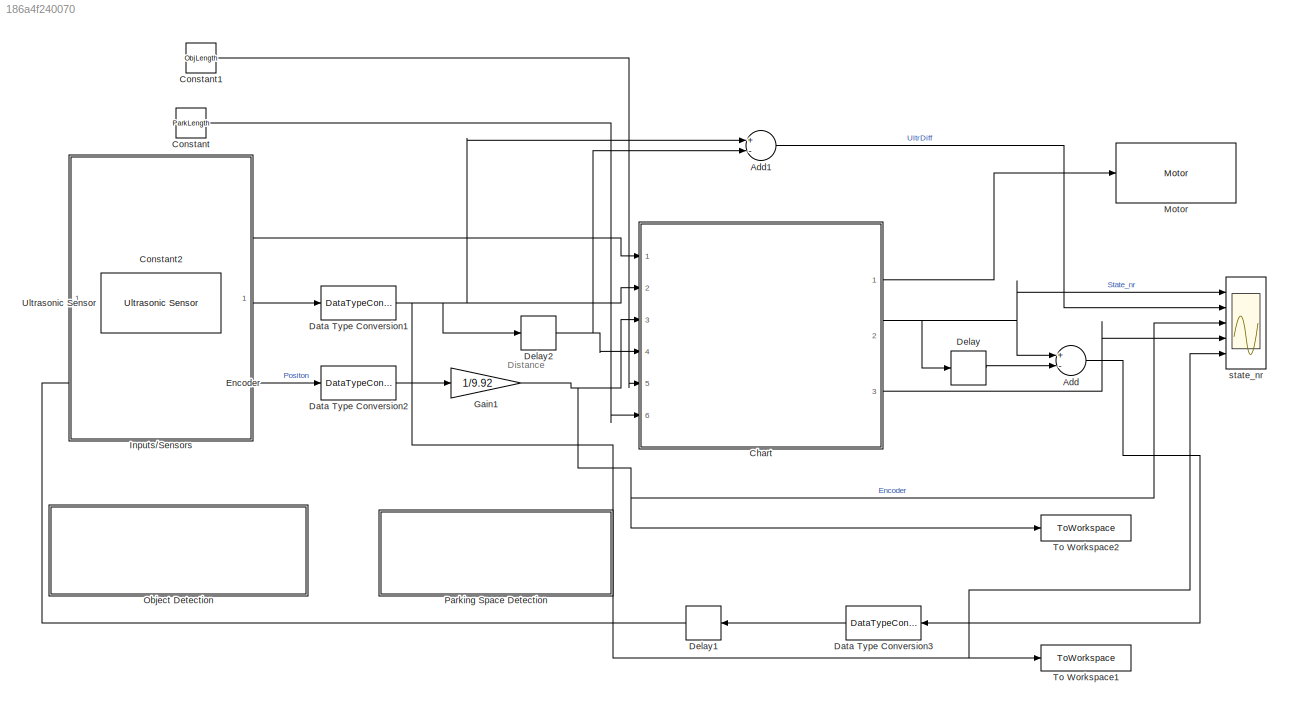
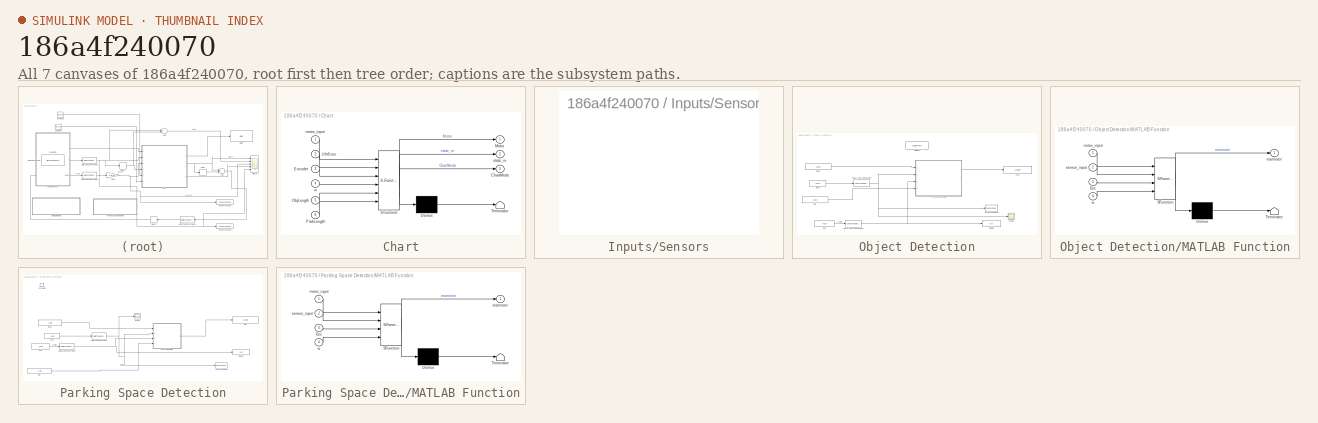
[diagram: thumbnail index - all 7 canvases of the model, root first then tree order]
MODEL slx_186a4f240070
KIND model
CONFIG AbsTol = auto
CONFIG FixedStep = auto
CONFIG MaxStep = auto
CONFIG MinStep = auto
CONFIG RelTol = 1e-3
CONFIG SampleTimeConstraint = Unconstrained
CONFIG Solver = ode45
CONFIG SolverMode = Auto
CONFIG SolverName = ode45
CONFIG StartTime = 0.0
CONFIG StopTime = 10.0
BLOCK [Sum] Add
  InputSameDT = off
  Inputs = +-
  OutDataTypeStr = Inherit: Inherit via internal rule
  Ports = [2, 1]
  SaturateOnIntegerOverflow = off
BLOCK [Sum] Add1
  InputSameDT = off
  Inputs = +-
  OutDataTypeStr = Inherit: Inherit via internal rule
  Ports = [2, 1]
  SaturateOnIntegerOverflow = off
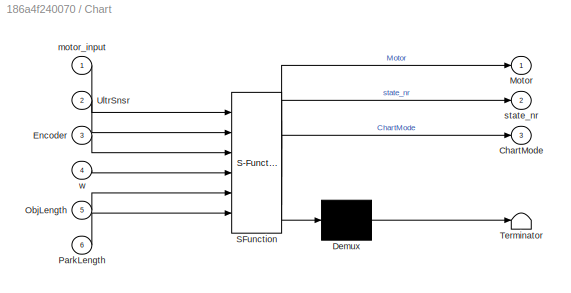
BLOCK [SubSystem] Chart
  ErrorFcn = Stateflow.Translate.translate
  PermitHierarchicalResolution = ExplicitOnly
  Ports = [6, 3]
  RequestExecContextInheritance = off
  SFBlockType = Chart
  TreatAsAtomicUnit = on
BLOCK [Demux] Chart/ Demux 
  Outputs = 1
  Ports = [1, 1]
BLOCK [S-Function] Chart/ SFunction 
  EnableBusSupport = on
  FunctionName = sf_sfun
  PortCounts = [6 4]
  Ports = [6, 4]
  Tag = Stateflow S-Function stateflow6 3
BLOCK [Terminator] Chart/ Terminator 
BLOCK [Outport] Chart/ChartMode
  IconDisplay = Port number
  Port = 3
BLOCK [Inport] Chart/Encoder
  IconDisplay = Port number
  Port = 3
BLOCK [Outport] Chart/Motor
  IconDisplay = Port number
BLOCK [Inport] Chart/ObjLength
  IconDisplay = Port number
  Port = 5
BLOCK [Inport] Chart/ParkLength
  IconDisplay = Port number
  Port = 6
BLOCK [Inport] Chart/UltrSnsr
  IconDisplay = Port number
  Port = 2
BLOCK [Inport] Chart/motor_input
  IconDisplay = Port number
BLOCK [Outport] Chart/state_nr
  IconDisplay = Port number
  Port = 2
BLOCK [Inport] Chart/w
  IconDisplay = Port number
  Port = 4
BLOCK [Constant] Constant
  Value = ParkLength
BLOCK [Constant] Constant1
  Value = ObjLength
BLOCK [Constant] Constant2
  Value = 30
BLOCK [DataTypeConversion] Data Type Conversion1
  RndMeth = Floor
  SaturateOnIntegerOverflow = off
BLOCK [DataTypeConversion] Data Type Conversion2
  RndMeth = Floor
  SaturateOnIntegerOverflow = off
BLOCK [DataTypeConversion] Data Type Conversion3
  OutDataTypeStr = int8
  RndMeth = Floor
  SaturateOnIntegerOverflow = off
BLOCK [Delay] Delay
  DelayLength = 1
  InitialCondition = 0
  InputPortMap = u0
  Ports = [1, 1]
BLOCK [Delay] Delay1
  DelayLength = 1
  InitialCondition = 0
  InputPortMap = u0
  Ports = [1, 1]
BLOCK [Delay] Delay2
  DelayLength = 1
  InitialCondition = 0
  InputPortMap = u0
  Ports = [1, 1]
BLOCK [Reference] Encoder  REF=legoev3lib/Encoder
  Ports = [1, 1]
  SourceBlock = legoev3lib/Encoder
  SourceType = LEGO MINDSTORMS EV3 Encoder
  opMode = Reset by external signal
  portNumber = A
  sampleTime = 0.01
BLOCK [Gain] Gain1
  Gain = 1/9.92
  OutDataTypeStr = Inherit: Inherit via internal rule
  ParamDataTypeStr = Inherit: Inherit via internal rule
  SaturateOnIntegerOverflow = off
BLOCK [SubSystem] Inputs//Sensors
  Ports = []
  RequestExecContextInheritance = off
BLOCK [Reference] Motor  REF=legoev3lib/Motor
  Ports = [1]
  SourceBlock = legoev3lib/Motor
  SourceType = LEGO MINDSTORMS EV3 Motor
  sportNumber = A
  sstopAction = Brake
BLOCK [SubSystem] Object Detection
  Ports = [0, 0, 0, 1]
  RequestExecContextInheritance = off
  TreatAsAtomicUnit = on
BLOCK [DataTypeConversion] Object Detection/Data Type Conversion
  RndMeth = Floor
  SaturateOnIntegerOverflow = off
BLOCK [DataTypeConversion] Object Detection/Data Type Conversion1
  RndMeth = Floor
  SaturateOnIntegerOverflow = off
BLOCK [Display] Object Detection/Display
  Decimation = 1
  Ports = [1]
BLOCK [ArgIn] Object Detection/Enc
  ArgumentName = Enc
  DisableCoverage = on
  Port = 3
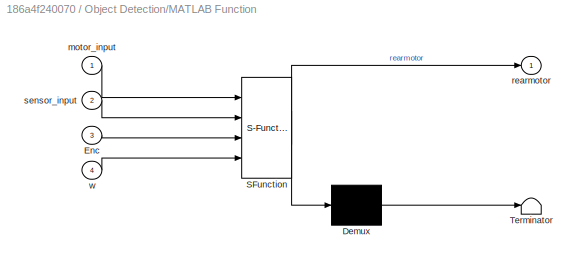
BLOCK [SubSystem] Object Detection/MATLAB Function
  ErrorFcn = Stateflow.Translate.translate
  PermitHierarchicalResolution = ExplicitOnly
  Ports = [4, 1]
  RequestExecContextInheritance = off
  SFBlockType = MATLAB Function
  TreatAsAtomicUnit = on
BLOCK [Demux] Object Detection/MATLAB Function/ Demux 
  Outputs = 1
  Ports = [1, 1]
BLOCK [S-Function] Object Detection/MATLAB Function/ SFunction 
  EnableBusSupport = on
  FunctionName = sf_sfun
  PortCounts = [4 2]
  Ports = [4, 2]
  Tag = Stateflow S-Function stateflow6 2
BLOCK [Terminator] Object Detection/MATLAB Function/ Terminator 
BLOCK [Inport] Object Detection/MATLAB Function/Enc
  IconDisplay = Port number
  Port = 3
BLOCK [Inport] Object Detection/MATLAB Function/motor_input
  IconDisplay = Port number
BLOCK [Outport] Object Detection/MATLAB Function/rearmotor
  IconDisplay = Port number
BLOCK [Inport] Object Detection/MATLAB Function/sensor_input
  IconDisplay = Port number
  Port = 2
BLOCK [Inport] Object Detection/MATLAB Function/w
  IconDisplay = Port number
  Port = 4
BLOCK [ArgOut] Object Detection/Mot
  ArgumentName = Mot
  DisableCoverage = on
BLOCK [TriggerPort] Object Detection/ObjDetn
  FunctionName = ObjDetn
  IsSimulinkFunction = on
  Ports = []
  StatesWhenEnabling = held
  TriggerType = function-call
BLOCK [Scope] Object Detection/Scope
  Floating = off
  NumInputPorts = 1
  Ports = [1]
  YMax = 3.15
  YMin = 2.85
BLOCK [ArgIn] Object Detection/Snsr
  ArgumentName = Snsr
  DisableCoverage = on
  Port = 2
BLOCK [ToWorkspace] Object Detection/To Workspace2
  FixptAsFi = on
  MaxDataPoints = inf
  Ports = [1]
  SampleTime = -1
  Save2DSignal = 3-D array (concatenate along third dimension)
  VariableName = UltrSnsr_w
BLOCK [ArgIn] Object Detection/input
  ArgumentName = input
  DisableCoverage = on
BLOCK [ArgIn] Object Detection/ww
  ArgumentName = ww
  DisableCoverage = on
  Port = 4
BLOCK [SubSystem] Parking Space Detection
  Ports = [0, 0, 0, 1]
  RequestExecContextInheritance = off
  TreatAsAtomicUnit = on
BLOCK [DataTypeConversion] Parking Space Detection/Data Type Conversion
  RndMeth = Floor
  SaturateOnIntegerOverflow = off
BLOCK [DataTypeConversion] Parking Space Detection/Data Type Conversion1
  RndMeth = Floor
  SaturateOnIntegerOverflow = off
BLOCK [Display] Parking Space Detection/Display
  Decimation = 1
  Ports = [1]
BLOCK [ArgIn] Parking Space Detection/Enc
  ArgumentName = Enc
  DisableCoverage = on
  Port = 3
BLOCK [SubSystem] Parking Space Detection/MATLAB Function
  ErrorFcn = Stateflow.Translate.translate
  PermitHierarchicalResolution = ExplicitOnly
  Ports = [4, 1]
  RequestExecContextInheritance = off
  SFBlockType = MATLAB Function
  TreatAsAtomicUnit = on
BLOCK [Demux] Parking Space Detection/MATLAB Function/ Demux 
  Outputs = 1
  Ports = [1, 1]
BLOCK [S-Function] Parking Space Detection/MATLAB Function/ SFunction 
  EnableBusSupport = on
  FunctionName = sf_sfun
  PortCounts = [4 2]
  Ports = [4, 2]
  Tag = Stateflow S-Function stateflow6 1
BLOCK [Terminator] Parking Space Detection/MATLAB Function/ Terminator 
BLOCK [Inport] Parking Space Detection/MATLAB Function/Enc
  IconDisplay = Port number
  Port = 3
BLOCK [Inport] Parking Space Detection/MATLAB Function/motor_input
  IconDisplay = Port number
BLOCK [Outport] Parking Space Detection/MATLAB Function/rearmotor
  IconDisplay = Port number
BLOCK [Inport] Parking Space Detection/MATLAB Function/sensor_input
  IconDisplay = Port number
  Port = 2
BLOCK [Inport] Parking Space Detection/MATLAB Function/w
  IconDisplay = Port number
  Port = 4
BLOCK [ArgOut] Parking Space Detection/Mot
  ArgumentName = Mot
  DisableCoverage = on
BLOCK [TriggerPort] Parking Space Detection/ParkDetn
  FunctionName = ParkDetn
  IsSimulinkFunction = on
  Ports = []
  StatesWhenEnabling = held
  TriggerType = function-call
BLOCK [Scope] Parking Space Detection/Scope
  Floating = off
  NumInputPorts = 1
  Ports = [1]
  SaveName = ScopeData1
  YMax = 3
  YMin = 3
BLOCK [ArgIn] Parking Space Detection/Snsr
  ArgumentName = Snsr
  DisableCoverage = on
  Port = 2
BLOCK [ToWorkspace] Parking Space Detection/To Workspace2
  FixptAsFi = on
  MaxDataPoints = inf
  Ports = [1]
  SampleTime = -1
  Save2DSignal = 3-D array (concatenate along third dimension)
  VariableName = w1
BLOCK [ArgIn] Parking Space Detection/input
  ArgumentName = input
  DisableCoverage = on
BLOCK [ArgIn] Parking Space Detection/ww
  ArgumentName = ww
  DisableCoverage = on
  Port = 4
BLOCK [ToWorkspace] To Workspace1
  FixptAsFi = on
  MaxDataPoints = inf
  Ports = [1]
  SampleTime = -1
  Save2DSignal = 3-D array (concatenate along third dimension)
  VariableName = problem_encoder1
BLOCK [ToWorkspace] To Workspace2
  FixptAsFi = on
  MaxDataPoints = inf
  Ports = [1]
  SampleTime = -1
  Save2DSignal = 3-D array (concatenate along third dimension)
  VariableName = problem_encoder
BLOCK [Reference] Ultrasonic Sensor  REF=legoev3lib/Ultrasonic Sensor
  PortNumber = 1
  Ports = [0, 1]
  SourceBlock = legoev3lib/Ultrasonic Sensor
  SourceType = LEGO MINDSTORMS EV3 Ultrasonic Sensor
  sampleTime = 0.01
BLOCK [Scope] state_nr
  Floating = off
  NumInputPorts = 5
  Ports = [5]
  SaveName = ScopeData4
  YMax = 2~20~300~2~35
  YMin = 1~-20~0~1~0
ANNOTATION (root): Distance
LINE Add1:1 -> state_nr:2
LINE Add:1 -> Data Type Conversion3:1
LINE Chart:1 -> Motor:1
NET Chart:2 -> Add:1, Delay:1, state_nr:1
LINE Chart:3 -> state_nr:4
LINE Constant1:1 -> Chart:5
LINE Constant2:1 -> Chart:1
LINE Constant:1 -> Chart:6
NET Data Type Conversion1:1 -> Add1:1, Chart:2, Delay2:1, To Workspace1:1, state_nr:5
LINE Data Type Conversion2:1 -> Gain1:1
LINE Data Type Conversion3:1 -> Delay1:1
LINE Delay1:1 -> Encoder:1
NET Delay2:1 -> Add1:2, Chart:4
LINE Delay:1 -> Add:2
LINE Encoder:1 -> Data Type Conversion2:1
NET Gain1:1 -> Chart:3, To Workspace2:1, state_nr:3
NET Object Detection/Data Type Conversion1:1 -> Object Detection/Display:1, Object Detection/MATLAB Function:3
NET Object Detection/Data Type Conversion:1 -> Object Detection/MATLAB Function:2, Object Detection/Scope:1, Object Detection/To Workspace2:1
LINE Object Detection/Enc:1 -> Object Detection/Data Type Conversion1:1
LINE Object Detection/MATLAB Function:1 -> Object Detection/Mot:1
LINE Object Detection/Snsr:1 -> Object Detection/Data Type Conversion:1
LINE Object Detection/input:1 -> Object Detection/MATLAB Function:1
LINE Object Detection/ww:1 -> Object Detection/MATLAB Function:4
NET Parking Space Detection/Data Type Conversion1:1 -> Parking Space Detection/Display:1, Parking Space Detection/MATLAB Function:3
NET Parking Space Detection/Data Type Conversion:1 -> Parking Space Detection/MATLAB Function:2, Parking Space Detection/Scope:1, Parking Space Detection/To Workspace2:1
LINE Parking Space Detection/Enc:1 -> Parking Space Detection/Data Type Conversion1:1
LINE Parking Space Detection/MATLAB Function:1 -> Parking Space Detection/Mot:1
LINE Parking Space Detection/Snsr:1 -> Parking Space Detection/Data Type Conversion:1
LINE Parking Space Detection/input:1 -> Parking Space Detection/MATLAB Function:1
LINE Parking Space Detection/ww:1 -> Parking Space Detection/MATLAB Function:4
LINE Ultrasonic Sensor:1 -> Data Type Conversion1:1
note: NET lines group one-source signal fan-out (src -> all destinations, sorted); 1:1 wires keep LINE
CHART Parking Space Detection/MATLAB Function states=1 transitions=1
  STATE_LABEL 'eML_blk_kernel()'
  STATE_LABEL 'SCRIPT:\nfunction rearmotor = fcn(motor_input,sensor_input,Enc,w)\n%#codegen\n%d = z\n%u = 0; %Encoder reset\n% x = w;\n% length2=0;\n%reset11=0;\n%state3=0;\nif(sensor_input>24)&&(sensor_input<=60)\n    rearmotor=motor_input-15;\n%     if((sensor_input-w)>2)||((sensor_input-w)<-2)\n%         rearmotor = motor_input - 15;\n%     elseif(sensor_input>4)&&(sensor_input<=20)\n%         rearmotor = motor_input-15;\n%...<+498ch>'
CHART Object Detection/MATLAB Function states=1 transitions=1
  STATE_LABEL 'eML_blk_kernel()'
  STATE_LABEL 'SCRIPT:\nfunction rearmotor = fcn(motor_input,sensor_input,Enc,w)\n%#codegen\n%d = z\n%u = 0; %Encoder reset\n%x = w;\n%lenght=0;\n%reset1=0;\n%state2=0;\nif(sensor_input>4)&&(sensor_input<=24)\n    rearmotor=motor_input;\n%     if((sensor_input-w)>2)|| ((sensor_input-w)<-2)\n%         rearmotor = motor_input - 15;\n%     elseif(sensor_input>4)&&(sensor_input<=20)\n%         rearmotor = motor_input-5;\n%     end...<+489ch>'
CHART Chart states=8 transitions=9
  STATE_LABEL 'First_Object\nen:\nstate_nr=1;\ndu:\nMotor = ObjDetn(motor_input,UltrSnsr,Encoder,w);'
  STATE_LABEL 'Stop_motor\nentry: Motor=0;\n state_nr=5;'
  STATE_LABEL ' '
  STATE_LABEL ' '
  STATE_LABEL 'Park_Space\nen:\nstate_nr=2;\ndu:\nMotor = ParkDetn(motor_input,UltrSnsr,Encoder,w);'
  STATE_LABEL ' '
  STATE_LABEL ' '
  STATE_LABEL ' '
  STATE_LABEL ' '
  STATE_LABEL 'Second_Object\nen:\nstate_nr=3;\ndu:\nMotor = ObjDetn(motor_input,UltrSnsr,Encoder,w);'
